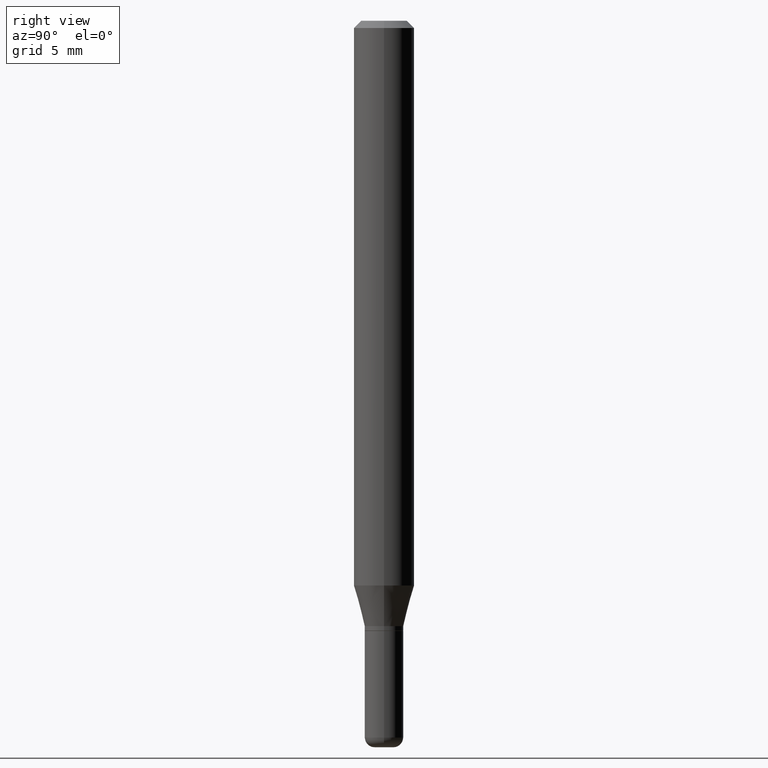
[diagram: clean part render]
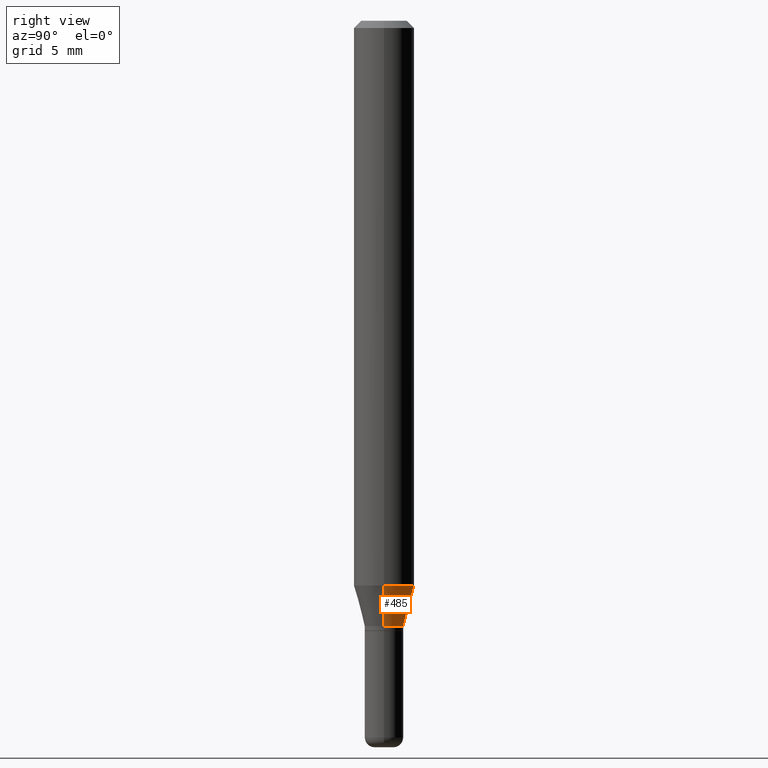
[diagram: same view with one face highlighted and labeled with its STEP entity id]
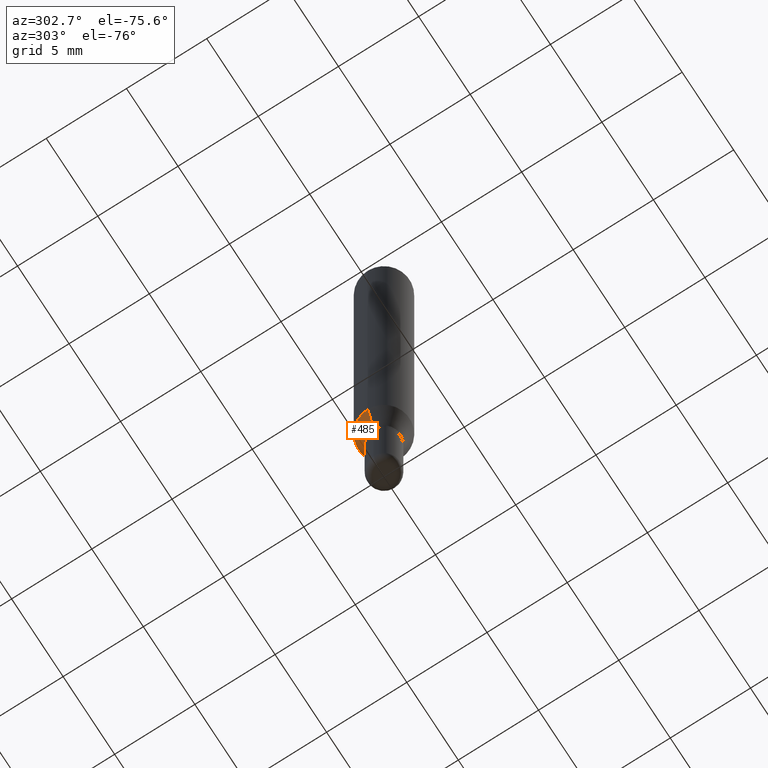
[diagram: same view with one face highlighted and labeled with its STEP entity id]
A machine part, right view. The second image highlights one B-rep face of the part: STEP entity #485.
A second angle (auxiliary view) of the same face is appended — the face is thin or edge-on in the first view.
In plain terms, the highlighted conical surface has half-angle 15 deg.
Its self-contained STEP definition (entity closure, byte-faithful):
#12 = CIRCLE ( 'NONE', #486, 0.06250000000000000000 ) ;
#13 = DIRECTION ( 'NONE',  ( 0.2588190451025207950, 1.565188264969625912E-15, 0.9659258262890682012 ) ) ;
#14 = LINE ( 'NONE', #374, #339 ) ;
#24 = CARTESIAN_POINT ( 'NONE',  ( 3.056836007731421306E-29, -4.364351673553932471E-15, -1.250000000000000000 ) ) ;
#28 = LINE ( 'NONE', #259, #222 ) ;
#34 = VERTEX_POINT ( 'NONE', #504 ) ;
#36 = ORIENTED_EDGE ( 'NONE', *, *, #237, .F. ) ;
#45 = ORIENTED_EDGE ( 'NONE', *, *, #423, .T. ) ;
#53 = AXIS2_PLACEMENT_3D ( 'NONE', #386, #460, #190 ) ;
#110 = DIRECTION ( 'NONE',  ( -2.445468806185136597E-29, 3.491481338843145583E-15, 1.000000000000000000 ) ) ;
#122 = VERTEX_POINT ( 'NONE', #127 ) ;
#127 = CARTESIAN_POINT ( 'NONE',  ( 0.06250000000000000000, -4.507603161528897181E-15, -1.166028856829700366 ) ) ;
#150 = EDGE_LOOP ( 'NONE', ( #45, #479, #36, #514 ) ) ;
#151 = VERTEX_POINT ( 'NONE', #401 ) ;
#190 = DIRECTION ( 'NONE',  ( 1.000000000000000000, -6.982962677686271444E-15, 0.000000000000000000 ) ) ;
#222 = VECTOR ( 'NONE', #420, 39.37007874015748854 ) ;
#231 = CIRCLE ( 'NONE', #300, 0.04000000000000000083 ) ;
#237 = EDGE_CURVE ( 'NONE', #122, #151, #12, .T. ) ;
#259 = CARTESIAN_POINT ( 'NONE',  ( -0.04000000000000000083, -4.080134579249892145E-15, -1.250000000000000000 ) ) ;
#284 = DIRECTION ( 'NONE',  ( -2.445468806185136597E-29, 3.491481338843145583E-15, 1.000000000000000000 ) ) ;
#300 = AXIS2_PLACEMENT_3D ( 'NONE', #24, #110, #348 ) ;
#339 = VECTOR ( 'NONE', #13, 39.37007874015748854 ) ;
#348 = DIRECTION ( 'NONE',  ( 1.000000000000000000, -6.982962677686271444E-15, 0.000000000000000000 ) ) ;
#352 = FACE_OUTER_BOUND ( 'NONE', #150, .T. ) ;
#367 = EDGE_CURVE ( 'NONE', #390, #122, #14, .T. ) ;
#374 = CARTESIAN_POINT ( 'NONE',  ( 0.04000000000000000083, -4.643670180661383298E-15, -1.250000000000000000 ) ) ;
#386 = CARTESIAN_POINT ( 'NONE',  ( 3.056836007731421306E-29, -4.364351673553932471E-15, -1.250000000000000000 ) ) ;
#390 = VERTEX_POINT ( 'NONE', #417 ) ;
#401 = CARTESIAN_POINT ( 'NONE',  ( -0.06250000000000000000, -3.627078784323442106E-15, -1.166028856829700366 ) ) ;
#417 = CARTESIAN_POINT ( 'NONE',  ( 0.04000000000000000083, -4.643670180661383298E-15, -1.250000000000000000 ) ) ;
#420 = DIRECTION ( 'NONE',  ( -0.2588190451025207950, 5.211531920934546309E-15, 0.9659258262890682012 ) ) ;
#423 = EDGE_CURVE ( 'NONE', #390, #34, #231, .T. ) ;
#460 = DIRECTION ( 'NONE',  ( -2.445468806185136597E-29, 3.491481338843145583E-15, 1.000000000000000000 ) ) ;
#479 = ORIENTED_EDGE ( 'NONE', *, *, #484, .T. ) ;
#481 = CARTESIAN_POINT ( 'NONE',  ( 2.851487196488747125E-29, -4.071167994173504722E-15, -1.166028856829700366 ) ) ;
#483 = DIRECTION ( 'NONE',  ( 1.000000000000000000, -6.982962677686262766E-15, 0.000000000000000000 ) ) ;
#484 = EDGE_CURVE ( 'NONE', #34, #151, #28, .T. ) ;
#485 = ADVANCED_FACE ( 'NONE', ( #352 ), #489, .T. ) ;
#486 = AXIS2_PLACEMENT_3D ( 'NONE', #481, #284, #483 ) ;
#489 = CONICAL_SURFACE ( 'NONE', #53, 0.04000000000000000083, 0.2617993877991495189 ) ;
#504 = CARTESIAN_POINT ( 'NONE',  ( -0.04000000000000000083, -3.853606681786667125E-15, -1.250000000000000000 ) ) ;
#514 = ORIENTED_EDGE ( 'NONE', *, *, #367, .F. ) ;